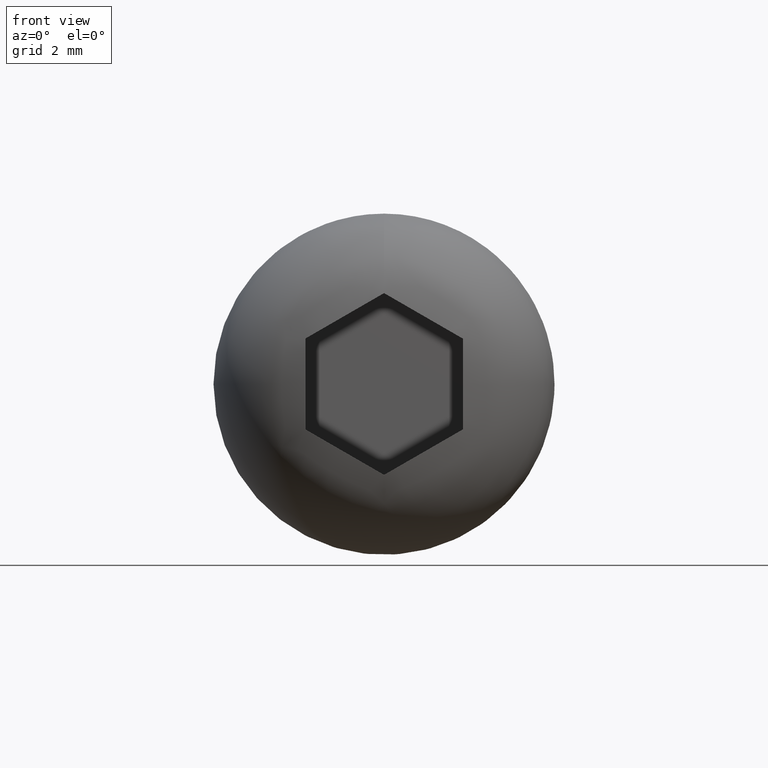
[diagram: clean part render]
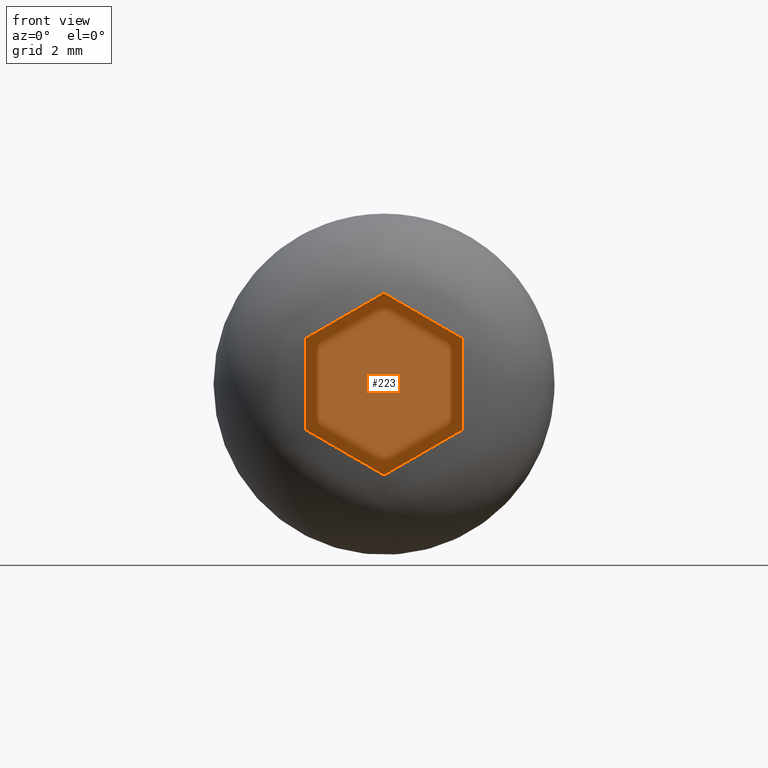
[diagram: same view with one face highlighted and labeled with its STEP entity id]
A machine part, front view. The second image highlights one B-rep face of the part: STEP entity #223.
In plain terms, the highlighted planar face has unit normal (0, -1, 0).
Its self-contained STEP definition (entity closure, byte-faithful):
#25=PLANE('',#265);
#31=LINE('',#424,#46);
#33=LINE('',#428,#48);
#35=LINE('',#432,#50);
#37=LINE('',#436,#52);
#39=LINE('',#440,#54);
#40=LINE('',#442,#55);
#46=VECTOR('',#299,3.46410161513775);
#48=VECTOR('',#303,3.46410161513775);
#50=VECTOR('',#307,3.46410161513775);
#52=VECTOR('',#311,3.46410161513775);
#54=VECTOR('',#315,3.46410161513776);
#55=VECTOR('',#318,3.46410161513776);
#70=FACE_OUTER_BOUND('',#84,.T.);
#84=EDGE_LOOP('',(#204,#205,#206,#207,#208,#209));
#114=VERTEX_POINT('',#420);
#115=VERTEX_POINT('',#422);
#116=VERTEX_POINT('',#426);
#117=VERTEX_POINT('',#430);
#118=VERTEX_POINT('',#434);
#119=VERTEX_POINT('',#438);
#140=EDGE_CURVE('',#114,#115,#31,.T.);
#142=EDGE_CURVE('',#115,#116,#33,.T.);
#144=EDGE_CURVE('',#116,#117,#35,.T.);
#146=EDGE_CURVE('',#117,#118,#37,.T.);
#148=EDGE_CURVE('',#118,#119,#39,.T.);
#149=EDGE_CURVE('',#119,#114,#40,.T.);
#204=ORIENTED_EDGE('',*,*,#140,.T.);
#205=ORIENTED_EDGE('',*,*,#142,.T.);
#206=ORIENTED_EDGE('',*,*,#144,.T.);
#207=ORIENTED_EDGE('',*,*,#146,.T.);
#208=ORIENTED_EDGE('',*,*,#148,.T.);
#209=ORIENTED_EDGE('',*,*,#149,.T.);
#223=ADVANCED_FACE('',(#70),#25,.T.);
#265=AXIS2_PLACEMENT_3D('',#443,#319,#320);
#299=DIRECTION('',(0.,0.,-1.));
#303=DIRECTION('',(0.866025403784439,0.,-0.5));
#307=DIRECTION('',(0.866025403784439,0.,0.5));
#311=DIRECTION('',(0.,0.,1.));
#315=DIRECTION('',(-0.866025403784438,0.,0.5));
#318=DIRECTION('',(-0.866025403784439,0.,-0.5));
#319=DIRECTION('center_axis',(0.,-1.,0.));
#320=DIRECTION('ref_axis',(0.,0.,-1.));
#420=CARTESIAN_POINT('',(-3.,-0.999999999979991,1.73205080756888));
#422=CARTESIAN_POINT('',(-3.,-0.999999999979991,-1.73205080756888));
#424=CARTESIAN_POINT('',(-3.,-0.999999999979991,1.73205080756888));
#426=CARTESIAN_POINT('',(0.,-0.999999999979991,-3.46410161513775));
#428=CARTESIAN_POINT('',(-3.,-0.999999999979991,-1.73205080756888));
#430=CARTESIAN_POINT('',(3.,-0.999999999979991,-1.73205080756888));
#432=CARTESIAN_POINT('',(0.,-0.999999999979991,-3.46410161513775));
#434=CARTESIAN_POINT('',(3.,-0.999999999979991,1.73205080756888));
#436=CARTESIAN_POINT('',(3.,-0.999999999979991,-1.73205080756888));
#438=CARTESIAN_POINT('',(0.,-0.999999999979991,3.46410161513775));
#440=CARTESIAN_POINT('',(3.,-0.999999999979991,1.73205080756888));
#442=CARTESIAN_POINT('',(0.,-0.999999999979991,3.46410161513775));
#443=CARTESIAN_POINT('Origin',(-3.60000472442152,-0.999999999979991,4.15692666258672));